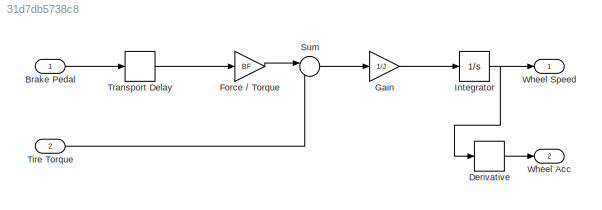
MODEL slx_31d7db5738c8
KIND model
CONFIG InitFcn = initBrakeParams
CONFIG StartFcn = initBrakeParams\n
BLOCK [Inport] Brake Pedal
  IconDisplay = Port number
  OutDataTypeStr = double
BLOCK [Derivative] Derivative
BLOCK [Gain] Force // Torque
  Gain = BF
  OutDataTypeStr = double
  ParamDataTypeStr = Inherit: Inherit via internal rule
  SaturateOnIntegerOverflow = off
BLOCK [Gain] Gain
  Gain = 1/J
  OutDataTypeStr = double
  ParamDataTypeStr = Inherit: Inherit via internal rule
  SaturateOnIntegerOverflow = off
BLOCK [Integrator] Integrator
  InitialCondition = v0/(2*pi*Rd)
  LimitOutput = on
  LowerSaturationLimit = 0
  Ports = [1, 1]
BLOCK [Sum] Sum
  AccumDataTypeStr = double
  IconShape = round
  InputSameDT = off
  Inputs = |-+
  OutDataTypeStr = double
  Ports = [2, 1]
  SaturateOnIntegerOverflow = off
BLOCK [Inport] Tire Torque
  IconDisplay = Port number
  OutDataTypeStr = double
  Port = 2
BLOCK [TransportDelay] Transport Delay
  DelayTime = 0.1
  Ports = [1, 1]
BLOCK [Outport] Wheel Acc
  IconDisplay = Port number
  OutDataTypeStr = double
  Port = 2
BLOCK [Outport] Wheel Speed
  IconDisplay = Port number
  OutDataTypeStr = double
LINE Brake Pedal:1 -> Transport Delay:1
LINE Derivative:1 -> Wheel Acc:1
LINE Force // Torque:1 -> Sum:1
LINE Gain:1 -> Integrator:1
NET Integrator:1 -> Derivative:1, Wheel Speed:1
LINE Sum:1 -> Gain:1
LINE Tire Torque:1 -> Sum:2
LINE Transport Delay:1 -> Force // Torque:1
note: NET lines group one-source signal fan-out (src -> all destinations, sorted); 1:1 wires keep LINE
